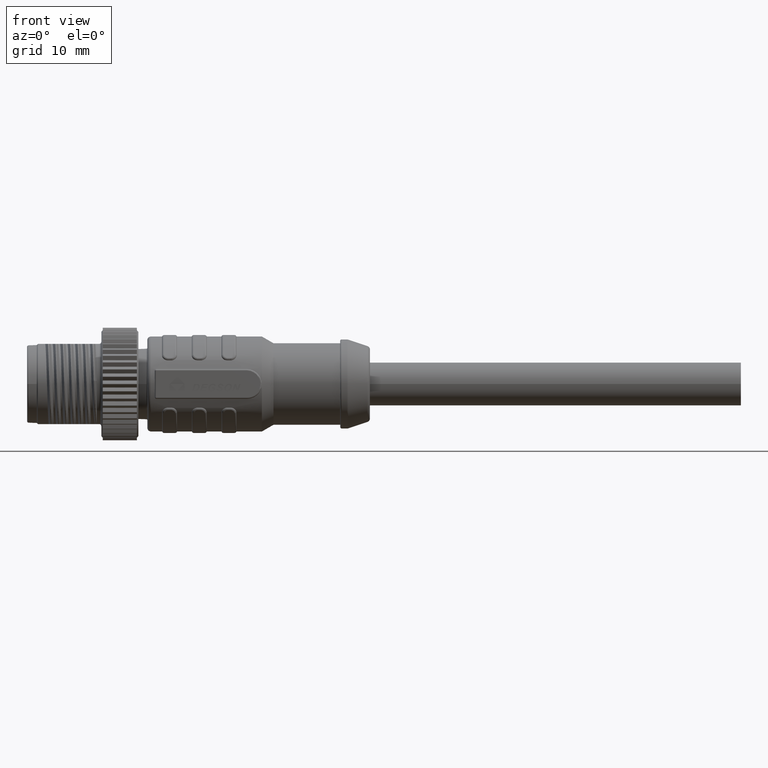
[diagram: clean part render]
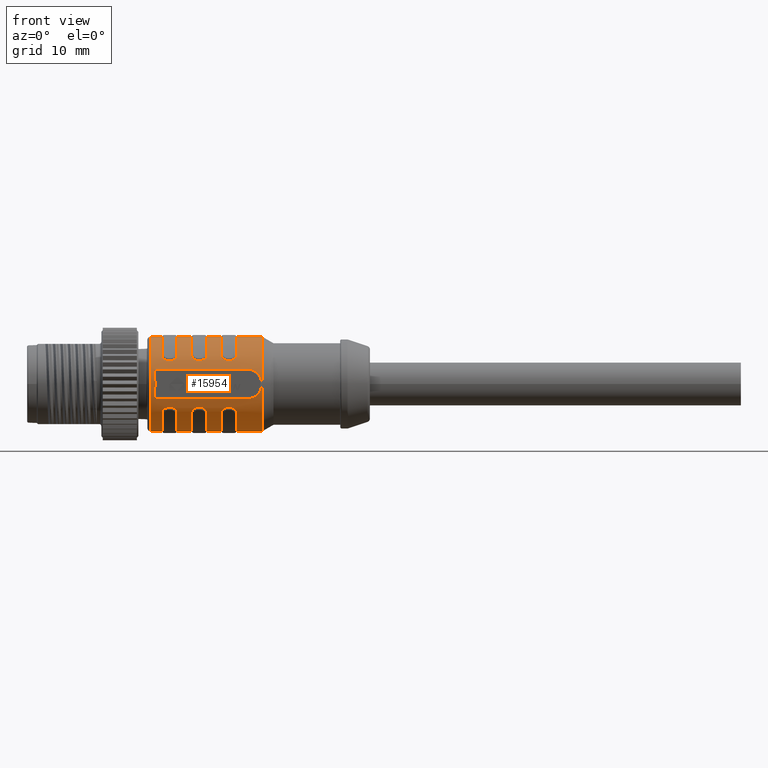
[diagram: same view with one face highlighted and labeled with its STEP entity id]
A machine part, front view. The second image highlights one B-rep face of the part: STEP entity #15954.
In plain terms, the highlighted cylindrical surface (partial cylindrical patch) has radius 6.4 mm, axis along (-1, 0, 0).
Its self-contained STEP definition (entity closure, byte-faithful):
#76=DIRECTION('',(-9.999999999816E-1,-6.059322400566E-6,-2.926676087035E-11));
#77=VECTOR('',#76,3.441154271713E0);
#78=CARTESIAN_POINT('',(2.964115427319E1,0.E0,6.399999999999E0));
#79=LINE('',#78,#77);
#80=DIRECTION('',(-9.999999997881E-1,-2.058735250332E-5,-2.545519353871E-12));
#81=VECTOR('',#80,1.999999997635E0);
#82=CARTESIAN_POINT('',(2.419999999875E1,2.032364179484E-5,6.399999999903E0));
#83=LINE('',#82,#81);
#84=DIRECTION('',(-9.999999997881E-1,-2.058735250331E-5,-2.545519353871E-12));
#85=VECTOR('',#84,1.999999997635E0);
#86=CARTESIAN_POINT('',(2.019999999875E1,2.032364179486E-5,6.399999999903E0));
#87=LINE('',#86,#85);
#88=DIRECTION('',(-9.999999999082E-1,-1.354909454062E-5,6.461142736739E-11));
#89=VECTOR('',#88,1.499999998888E0);
#90=CARTESIAN_POINT('',(1.619999999875E1,2.032364179482E-5,6.399999999903E0));
#91=LINE('',#90,#89);
#92=DIRECTION('',(9.999999999080E-1,-1.356484767814E-5,6.476182559069E-11));
#93=VECTOR('',#92,1.499999998639E0);
#94=CARTESIAN_POINT('',(1.47E1,0.E0,-6.4E0));
#95=LINE('',#94,#93);
#96=DIRECTION('',(9.999999999819E-1,-6.024739272015E-6,-2.892941790041E-11));
#97=VECTOR('',#96,3.441154271972E0);
#98=CARTESIAN_POINT('',(2.620000000128E1,2.073205728420E-5,-6.399999999899E0));
#99=LINE('',#98,#97);
#186=CARTESIAN_POINT('',(2.964115427319E1,0.E0,0.E0));
#187=DIRECTION('',(-1.E0,0.E0,0.E0));
#188=DIRECTION('',(0.E0,0.E0,-1.E0));
#189=AXIS2_PLACEMENT_3D('',#186,#187,#188);
#196=DIRECTION('',(-9.999999997891E-1,2.053966441587E-5,1.852296096468E-12));
#197=VECTOR('',#196,1.999999997643E0);
#198=CARTESIAN_POINT('',(2.419999999850E1,-2.034727149912E-5,
-6.399999999903E0));
#199=LINE('',#198,#197);
#200=DIRECTION('',(-9.999999997891E-1,2.053966441589E-5,1.852296096468E-12));
#201=VECTOR('',#200,1.999999997643E0);
#202=CARTESIAN_POINT('',(2.019999999850E1,-2.034727149914E-5,
-6.399999999903E0));
#203=LINE('',#202,#201);
#204=CARTESIAN_POINT('',(2.764115427319E1,-6.079473661428E0,-2.E0));
#205=CARTESIAN_POINT('',(2.780163845529E1,-6.079473661428E0,-2.E0));
#206=CARTESIAN_POINT('',(2.811464833037E1,-6.091755592816E0,-1.963359181012E0));
#207=CARTESIAN_POINT('',(2.858327753704E1,-6.146883456249E0,-1.787315610165E0));
#208=CARTESIAN_POINT('',(2.898205771589E1,-6.222318587440E0,-1.509587500098E0));
#209=CARTESIAN_POINT('',(2.919872446863E1,-6.275163225418E0,-1.265788930628E0));
#210=CARTESIAN_POINT('',(2.929342543737E1,-6.3E0,-1.126942766960E0));
#212=CARTESIAN_POINT('',(2.929342543737E1,-6.3E0,-1.126942766960E0));
#213=CARTESIAN_POINT('',(2.936165420298E1,-6.317894035236E0,-1.026908918489E0));
#214=CARTESIAN_POINT('',(2.947730784372E1,-6.351788841616E0,
-8.105054143812E-1));
#215=CARTESIAN_POINT('',(2.958763890134E1,-6.389730560142E0,
-4.306898746576E-1));
#216=CARTESIAN_POINT('',(2.961435935395E1,-6.4E0,-1.486254928851E-1));
#217=CARTESIAN_POINT('',(2.961435935395E1,-6.4E0,-5.580320254343E-13));
#219=CARTESIAN_POINT('',(2.961435935395E1,-6.4E0,-5.580320254343E-13));
#220=CARTESIAN_POINT('',(2.961435935395E1,-6.4E0,1.492340871503E-1));
#221=CARTESIAN_POINT('',(2.958742330879E1,-6.389647570708E0,4.320996901310E-1));
#222=CARTESIAN_POINT('',(2.947671250499E1,-6.351599550435E0,8.118824906241E-1));
#223=CARTESIAN_POINT('',(2.936129774273E1,-6.317800548094E0,1.027431543960E0));
#224=CARTESIAN_POINT('',(2.929342543737E1,-6.3E0,1.126942766960E0));
#226=CARTESIAN_POINT('',(2.929342543737E1,-6.3E0,1.126942766960E0));
#227=CARTESIAN_POINT('',(2.919869386668E1,-6.275155199587E0,1.265833797800E0));
#228=CARTESIAN_POINT('',(2.898196104747E1,-6.222296159373E0,1.509681462139E0));
#229=CARTESIAN_POINT('',(2.858312631997E1,-6.146859673757E0,1.787395308827E0));
#230=CARTESIAN_POINT('',(2.811451527086E1,-6.091746896638E0,1.963385022303E0));
#231=CARTESIAN_POINT('',(2.780158403127E1,-6.079473661428E0,2.E0));
#232=CARTESIAN_POINT('',(2.764115427319E1,-6.079473661428E0,2.E0));
#234=DIRECTION('',(-1.E0,0.E0,0.E0));
#235=VECTOR('',#234,1.224115427319E1);
#236=CARTESIAN_POINT('',(2.764115427319E1,-6.079473661428E0,2.E0));
#237=LINE('',#236,#235);
#238=CARTESIAN_POINT('',(1.54E1,-6.079473661428E0,2.E0));
#239=CARTESIAN_POINT('',(1.537307195620E1,-6.079473661428E0,2.E0));
#240=CARTESIAN_POINT('',(1.532334254447E1,-6.082825530815E0,1.989845588511E0));
#241=CARTESIAN_POINT('',(1.525686526739E1,-6.096675990605E0,1.947229248931E0));
#242=CARTESIAN_POINT('',(1.521120426843E1,-6.117753306916E0,1.880171213570E0));
#243=CARTESIAN_POINT('',(1.52E1,-6.133326229622E0,1.828438563792E0));
#244=CARTESIAN_POINT('',(1.52E1,-6.141661013114E0,1.8E0));
#246=CARTESIAN_POINT('',(1.52E1,-6.300000003816E0,1.126942723611E0));
#247=CARTESIAN_POINT('',(1.52E1,-6.319695225804E0,1.016839611516E0));
#248=CARTESIAN_POINT('',(1.520580988603E1,-6.355170004226E0,7.862852561663E-1));
#249=CARTESIAN_POINT('',(1.522156833608E1,-6.391704623956E0,3.978782816545E-1));
#250=CARTESIAN_POINT('',(1.522679491894E1,-6.399999999471E0,1.344978424839E-1));
#251=CARTESIAN_POINT('',(1.522679491924E1,-6.4E0,2.518636298469E-8));
#253=CARTESIAN_POINT('',(1.522679491924E1,-6.4E0,2.518636298469E-8));
#254=CARTESIAN_POINT('',(1.522679491955E1,-6.400000000529E0,
-1.345006295725E-1));
#255=CARTESIAN_POINT('',(1.522156813666E1,-6.391704388588E0,
-3.978849510847E-1));
#256=CARTESIAN_POINT('',(1.520580931416E1,-6.355168225319E0,
-7.862996081843E-1));
#257=CARTESIAN_POINT('',(1.52E1,-6.319694127585E0,-1.016845748926E0));
#258=CARTESIAN_POINT('',(1.52E1,-6.300000003816E0,-1.126942721597E0));
#260=CARTESIAN_POINT('',(1.52E1,-6.141661013114E0,-1.8E0));
#261=CARTESIAN_POINT('',(1.52E1,-6.133465097813E0,-1.827964740818E0));
#262=CARTESIAN_POINT('',(1.521075195406E1,-6.118078221059E0,-1.879118233744E0));
#263=CARTESIAN_POINT('',(1.525657168699E1,-6.096689635688E0,-1.947197619874E0));
#264=CARTESIAN_POINT('',(1.532412199528E1,-6.082709639096E0,-1.990197831782E0));
#265=CARTESIAN_POINT('',(1.537342687209E1,-6.079473661428E0,-2.E0));
#266=CARTESIAN_POINT('',(1.54E1,-6.079473661428E0,-2.E0));
#268=DIRECTION('',(1.E0,0.E0,0.E0));
#269=VECTOR('',#268,1.224115427319E1);
#270=CARTESIAN_POINT('',(1.54E1,-6.079473661428E0,-2.E0));
#271=LINE('',#270,#269);
#272=CARTESIAN_POINT('',(2.620000000128E1,0.E0,0.E0));
#273=DIRECTION('',(1.E0,0.E0,0.E0));
#274=DIRECTION('',(0.E0,-8.014645715649E-1,-5.980422564721E-1));
#275=AXIS2_PLACEMENT_3D('',#272,#273,#274);
#347=CARTESIAN_POINT('',(2.419999999850E1,0.E0,0.E0));
#348=DIRECTION('',(-1.E0,0.E0,0.E0));
#349=DIRECTION('',(0.E0,0.E0,-1.E0));
#350=AXIS2_PLACEMENT_3D('',#347,#348,#349);
#362=CARTESIAN_POINT('',(2.419999999904E1,-5.129373158741E0,-3.827470574744E0));
#363=CARTESIAN_POINT('',(2.419999959966E1,-5.178060385199E0,-3.762222531384E0));
#364=CARTESIAN_POINT('',(2.422482411822E1,-5.267740057093E0,-3.636985294219E0));
#365=CARTESIAN_POINT('',(2.433264968696E1,-5.386024759258E0,-3.458821236284E0));
#366=CARTESIAN_POINT('',(2.450104443900E1,-5.475021439979E0,-3.315193214644E0));
#367=CARTESIAN_POINT('',(2.471539562455E1,-5.530187328455E0,-3.221584294987E0));
#368=CARTESIAN_POINT('',(2.486891410122E1,-5.542562441258E0,-3.200000247345E0));
#369=CARTESIAN_POINT('',(2.495000013524E1,-5.542562584118E0,-3.199999999905E0));
#376=DIRECTION('',(1.E0,-2.049134749898E-10,-1.897025272598E-10));
#377=VECTOR('',#376,4.999998647626E-1);
#378=CARTESIAN_POINT('',(2.495000013524E1,-5.542562584118E0,-3.199999999905E0));
#379=LINE('',#378,#377);
#385=CARTESIAN_POINT('',(2.545E1,-5.542562584220E0,-3.2E0));
#386=CARTESIAN_POINT('',(2.553118455055E1,-5.542562427309E0,-3.200000271777E0));
#387=CARTESIAN_POINT('',(2.568484921258E1,-5.530157657030E0,-3.221636234788E0));
#388=CARTESIAN_POINT('',(2.589927360298E1,-5.474907932866E0,-3.315382947402E0));
#389=CARTESIAN_POINT('',(2.606758167202E1,-5.385847219767E0,-3.459098496607E0));
#390=CARTESIAN_POINT('',(2.617524496813E1,-5.267581782369E0,-3.637211579178E0));
#391=CARTESIAN_POINT('',(2.620000048411E1,-5.177992810335E0,-3.762313092475E0));
#392=CARTESIAN_POINT('',(2.620000000071E1,-5.129372861972E0,-3.827470973315E0));
#418=CARTESIAN_POINT('',(2.220000000128E1,0.E0,0.E0));
#419=DIRECTION('',(1.E0,0.E0,0.E0));
#420=DIRECTION('',(0.E0,-8.014645715649E-1,-5.980422564721E-1));
#421=AXIS2_PLACEMENT_3D('',#418,#419,#420);
#493=CARTESIAN_POINT('',(2.019999999850E1,0.E0,0.E0));
#494=DIRECTION('',(-1.E0,0.E0,0.E0));
#495=DIRECTION('',(0.E0,0.E0,-1.E0));
#496=AXIS2_PLACEMENT_3D('',#493,#494,#495);
#508=CARTESIAN_POINT('',(2.019999999904E1,-5.129373158741E0,-3.827470574744E0));
#509=CARTESIAN_POINT('',(2.019999959966E1,-5.178060385200E0,-3.762222531383E0));
#510=CARTESIAN_POINT('',(2.022482411822E1,-5.267740057096E0,-3.636985294216E0));
#511=CARTESIAN_POINT('',(2.033264968696E1,-5.386024759261E0,-3.458821236279E0));
#512=CARTESIAN_POINT('',(2.050104443901E1,-5.475021439981E0,-3.315193214641E0));
#513=CARTESIAN_POINT('',(2.071539562455E1,-5.530187328456E0,-3.221584294986E0));
#514=CARTESIAN_POINT('',(2.086891410122E1,-5.542562441259E0,-3.200000247344E0));
#515=CARTESIAN_POINT('',(2.095000013524E1,-5.542562584118E0,-3.199999999905E0));
#522=DIRECTION('',(1.E0,-2.049152513474E-10,-1.897043036174E-10));
#523=VECTOR('',#522,4.999998647619E-1);
#524=CARTESIAN_POINT('',(2.095000013524E1,-5.542562584118E0,-3.199999999905E0));
#525=LINE('',#524,#523);
#531=CARTESIAN_POINT('',(2.145E1,-5.542562584220E0,-3.2E0));
#532=CARTESIAN_POINT('',(2.153118455054E1,-5.542562427309E0,-3.200000271777E0));
#533=CARTESIAN_POINT('',(2.168484921256E1,-5.530157657032E0,-3.221636234784E0));
#534=CARTESIAN_POINT('',(2.189927360297E1,-5.474907932872E0,-3.315382947391E0));
#535=CARTESIAN_POINT('',(2.206758167202E1,-5.385847219771E0,-3.459098496600E0));
#536=CARTESIAN_POINT('',(2.217524496813E1,-5.267581782370E0,-3.637211579177E0));
#537=CARTESIAN_POINT('',(2.220000048411E1,-5.177992810335E0,-3.762313092475E0));
#538=CARTESIAN_POINT('',(2.220000000071E1,-5.129372861972E0,-3.827470973315E0));
#564=CARTESIAN_POINT('',(1.820000000128E1,0.E0,0.E0));
#565=DIRECTION('',(1.E0,0.E0,0.E0));
#566=DIRECTION('',(0.E0,-8.014645715649E-1,-5.980422564721E-1));
#567=AXIS2_PLACEMENT_3D('',#564,#565,#566);
#639=CARTESIAN_POINT('',(1.619999999850E1,0.E0,0.E0));
#640=DIRECTION('',(-1.E0,0.E0,0.E0));
#641=DIRECTION('',(0.E0,0.E0,-1.E0));
#642=AXIS2_PLACEMENT_3D('',#639,#640,#641);
#654=CARTESIAN_POINT('',(1.619999999904E1,-5.129373158741E0,-3.827470574744E0));
#655=CARTESIAN_POINT('',(1.619999959966E1,-5.178060385199E0,-3.762222531383E0));
#656=CARTESIAN_POINT('',(1.622482411822E1,-5.267740057094E0,-3.636985294218E0));
#657=CARTESIAN_POINT('',(1.633264968696E1,-5.386024759259E0,-3.458821236283E0));
#658=CARTESIAN_POINT('',(1.650104443900E1,-5.475021439978E0,-3.315193214645E0));
#659=CARTESIAN_POINT('',(1.671539562455E1,-5.530187328455E0,-3.221584294987E0));
#660=CARTESIAN_POINT('',(1.686891410122E1,-5.542562441259E0,-3.200000247344E0));
#661=CARTESIAN_POINT('',(1.695000013524E1,-5.542562584118E0,-3.199999999905E0));
#668=DIRECTION('',(1.E0,-2.049170277047E-10,-1.897051917961E-10));
#669=VECTOR('',#668,4.999998647619E-1);
#670=CARTESIAN_POINT('',(1.695000013524E1,-5.542562584118E0,-3.199999999905E0));
#671=LINE('',#670,#669);
#677=CARTESIAN_POINT('',(1.745E1,-5.542562584220E0,-3.2E0));
#678=CARTESIAN_POINT('',(1.753118455055E1,-5.542562427309E0,-3.200000271777E0));
#679=CARTESIAN_POINT('',(1.768484921257E1,-5.530157657031E0,-3.221636234786E0));
#680=CARTESIAN_POINT('',(1.789927360297E1,-5.474907932870E0,-3.315382947394E0));
#681=CARTESIAN_POINT('',(1.806758167201E1,-5.385847219774E0,-3.459098496595E0));
#682=CARTESIAN_POINT('',(1.817524496813E1,-5.267581782376E0,-3.637211579168E0));
#683=CARTESIAN_POINT('',(1.820000048411E1,-5.177992810338E0,-3.762313092471E0));
#684=CARTESIAN_POINT('',(1.820000000071E1,-5.129372861972E0,-3.827470973315E0));
#710=CARTESIAN_POINT('',(1.47E1,0.E0,0.E0));
#711=DIRECTION('',(1.E0,0.E0,0.E0));
#712=DIRECTION('',(0.E0,0.E0,1.E0));
#713=AXIS2_PLACEMENT_3D('',#710,#711,#712);
#8158=CARTESIAN_POINT('',(1.619999999875E1,0.E0,0.E0));
#8159=DIRECTION('',(-1.E0,0.E0,0.E0));
#8160=DIRECTION('',(0.E0,-8.014645715768E-1,5.980422564563E-1));
#8161=AXIS2_PLACEMENT_3D('',#8158,#8159,#8160);
#8233=CARTESIAN_POINT('',(1.820000000154E1,0.E0,0.E0));
#8234=DIRECTION('',(1.E0,0.E0,0.E0));
#8235=DIRECTION('',(0.E0,0.E0,1.E0));
#8236=AXIS2_PLACEMENT_3D('',#8233,#8234,#8235);
#8248=CARTESIAN_POINT('',(1.820000000099E1,-5.129373158715E0,3.827470574778E0));
#8249=CARTESIAN_POINT('',(1.820000040036E1,-5.178060385154E0,3.762222531445E0));
#8250=CARTESIAN_POINT('',(1.817517588187E1,-5.267740056952E0,3.636985294423E0));
#8251=CARTESIAN_POINT('',(1.806735031313E1,-5.386024759193E0,3.458821236386E0));
#8252=CARTESIAN_POINT('',(1.789895556127E1,-5.475021439867E0,3.315193214829E0));
#8253=CARTESIAN_POINT('',(1.768460437569E1,-5.530187328429E0,3.221584295034E0));
#8254=CARTESIAN_POINT('',(1.753108589888E1,-5.542562441259E0,3.200000247344E0));
#8255=CARTESIAN_POINT('',(1.744999986476E1,-5.542562584118E0,3.199999999905E0));
#8262=DIRECTION('',(-1.E0,-2.048868296299E-10,1.897362780488E-10));
#8263=VECTOR('',#8262,4.999998647628E-1);
#8264=CARTESIAN_POINT('',(1.744999986476E1,-5.542562584118E0,3.199999999905E0));
#8265=LINE('',#8264,#8263);
#8271=CARTESIAN_POINT('',(1.695E1,-5.542562584220E0,3.2E0));
#8272=CARTESIAN_POINT('',(1.686881544965E1,-5.542562427309E0,3.200000271778E0));
#8273=CARTESIAN_POINT('',(1.671515078789E1,-5.530157657095E0,3.221636234673E0));
#8274=CARTESIAN_POINT('',(1.650072639739E1,-5.474907933020E0,3.315382947148E0));
#8275=CARTESIAN_POINT('',(1.633241832811E1,-5.385847219868E0,3.459098496447E0));
#8276=CARTESIAN_POINT('',(1.622475503194E1,-5.267581782560E0,3.637211578904E0));
#8277=CARTESIAN_POINT('',(1.619999951590E1,-5.177992810401E0,3.762313092384E0));
#8278=CARTESIAN_POINT('',(1.619999999931E1,-5.129372861998E0,3.827470973279E0));
#8304=CARTESIAN_POINT('',(2.019999999875E1,0.E0,0.E0));
#8305=DIRECTION('',(-1.E0,0.E0,0.E0));
#8306=DIRECTION('',(0.E0,-8.014645715768E-1,5.980422564563E-1));
#8307=AXIS2_PLACEMENT_3D('',#8304,#8305,#8306);
#8379=CARTESIAN_POINT('',(2.220000000154E1,0.E0,0.E0));
#8380=DIRECTION('',(1.E0,0.E0,0.E0));
#8381=DIRECTION('',(0.E0,0.E0,1.E0));
#8382=AXIS2_PLACEMENT_3D('',#8379,#8380,#8381);
#8394=CARTESIAN_POINT('',(2.220000000099E1,-5.129373158715E0,3.827470574778E0));
#8395=CARTESIAN_POINT('',(2.220000040036E1,-5.178060385152E0,3.762222531449E0));
#8396=CARTESIAN_POINT('',(2.217517588187E1,-5.267740056946E0,3.636985294431E0));
#8397=CARTESIAN_POINT('',(2.206735031313E1,-5.386024759189E0,3.458821236392E0));
#8398=CARTESIAN_POINT('',(2.189895556128E1,-5.475021439865E0,3.315193214831E0));
#8399=CARTESIAN_POINT('',(2.168460437569E1,-5.530187328429E0,3.221584295034E0));
#8400=CARTESIAN_POINT('',(2.153108589888E1,-5.542562441259E0,3.200000247344E0));
#8401=CARTESIAN_POINT('',(2.144999986476E1,-5.542562584118E0,3.199999999905E0));
#8408=DIRECTION('',(-1.E0,-2.048868296299E-10,1.897353898702E-10));
#8409=VECTOR('',#8408,4.999998647628E-1);
#8410=CARTESIAN_POINT('',(2.144999986476E1,-5.542562584118E0,3.199999999905E0));
#8411=LINE('',#8410,#8409);
#8417=CARTESIAN_POINT('',(2.095E1,-5.542562584220E0,3.2E0));
#8418=CARTESIAN_POINT('',(2.086881544965E1,-5.542562427309E0,3.200000271778E0));
#8419=CARTESIAN_POINT('',(2.071515078789E1,-5.530157657095E0,3.221636234674E0));
#8420=CARTESIAN_POINT('',(2.050072639739E1,-5.474907933020E0,3.315382947148E0));
#8421=CARTESIAN_POINT('',(2.033241832811E1,-5.385847219869E0,3.459098496446E0));
#8422=CARTESIAN_POINT('',(2.022475503194E1,-5.267581782561E0,3.637211578902E0));
#8423=CARTESIAN_POINT('',(2.019999951590E1,-5.177992810401E0,3.762313092384E0));
#8424=CARTESIAN_POINT('',(2.019999999931E1,-5.129372861998E0,3.827470973279E0));
#8450=CARTESIAN_POINT('',(2.419999999875E1,0.E0,0.E0));
#8451=DIRECTION('',(-1.E0,0.E0,0.E0));
#8452=DIRECTION('',(0.E0,-8.014645715768E-1,5.980422564563E-1));
#8453=AXIS2_PLACEMENT_3D('',#8450,#8451,#8452);
#8525=CARTESIAN_POINT('',(2.620000000154E1,0.E0,0.E0));
#8526=DIRECTION('',(1.E0,0.E0,0.E0));
#8527=DIRECTION('',(0.E0,0.E0,1.E0));
#8528=AXIS2_PLACEMENT_3D('',#8525,#8526,#8527);
#8540=CARTESIAN_POINT('',(2.620000000099E1,-5.129373158715E0,3.827470574778E0));
#8541=CARTESIAN_POINT('',(2.620000040036E1,-5.178060385154E0,3.762222531445E0));
#8542=CARTESIAN_POINT('',(2.617517588187E1,-5.267740056951E0,3.636985294423E0));
#8543=CARTESIAN_POINT('',(2.606735031313E1,-5.386024759191E0,3.458821236388E0));
#8544=CARTESIAN_POINT('',(2.589895556128E1,-5.475021439865E0,3.315193214831E0));
#8545=CARTESIAN_POINT('',(2.568460437569E1,-5.530187328428E0,3.221584295035E0));
#8546=CARTESIAN_POINT('',(2.553108589889E1,-5.542562441259E0,3.200000247344E0));
#8547=CARTESIAN_POINT('',(2.544999986476E1,-5.542562584118E0,3.199999999905E0));
#8554=DIRECTION('',(-1.E0,-2.048868296299E-10,1.897362780488E-10));
#8555=VECTOR('',#8554,4.999998647628E-1);
#8556=CARTESIAN_POINT('',(2.544999986476E1,-5.542562584118E0,3.199999999905E0));
#8557=LINE('',#8556,#8555);
#8563=CARTESIAN_POINT('',(2.495E1,-5.542562584220E0,3.2E0));
#8564=CARTESIAN_POINT('',(2.486881544965E1,-5.542562427309E0,3.200000271778E0));
#8565=CARTESIAN_POINT('',(2.471515078789E1,-5.530157657095E0,3.221636234674E0));
#8566=CARTESIAN_POINT('',(2.450072639739E1,-5.474907933020E0,3.315382947148E0));
#8567=CARTESIAN_POINT('',(2.433241832811E1,-5.385847219869E0,3.459098496447E0));
#8568=CARTESIAN_POINT('',(2.422475503194E1,-5.267581782561E0,3.637211578903E0));
#8569=CARTESIAN_POINT('',(2.419999951590E1,-5.177992810401E0,3.762313092384E0));
#8570=CARTESIAN_POINT('',(2.419999999931E1,-5.129372861998E0,3.827470973279E0));
#9135=CARTESIAN_POINT('',(1.52E1,0.E0,0.E0));
#9136=DIRECTION('',(-1.E0,0.E0,0.E0));
#9137=DIRECTION('',(0.E0,-9.596345332990E-1,-2.8125E-1));
#9138=AXIS2_PLACEMENT_3D('',#9135,#9136,#9137);
#9152=CARTESIAN_POINT('',(1.52E1,0.E0,0.E0));
#9153=DIRECTION('',(-1.E0,0.E0,0.E0));
#9154=DIRECTION('',(0.E0,-9.84375E-1,1.760848073373E-1));
#9155=AXIS2_PLACEMENT_3D('',#9152,#9153,#9154);
#12973=CARTESIAN_POINT('',(2.929342543737E1,-6.3E0,1.126942766961E0));
#12974=VERTEX_POINT('',#12973);
#12975=VERTEX_POINT('',#219);
#12976=VERTEX_POINT('',#212);
#12981=CARTESIAN_POINT('',(1.54E1,-6.079473661428E0,2.E0));
#12982=VERTEX_POINT('',#12981);
#12983=CARTESIAN_POINT('',(2.764115427319E1,-6.079473661428E0,2.E0));
#12984=VERTEX_POINT('',#12983);
#12987=CARTESIAN_POINT('',(1.52E1,-6.141661013114E0,1.8E0));
#12988=VERTEX_POINT('',#12987);
#12989=VERTEX_POINT('',#253);
#12990=VERTEX_POINT('',#258);
#12991=VERTEX_POINT('',#246);
#12994=CARTESIAN_POINT('',(2.964115427319E1,0.E0,-6.399999999997E0));
#12995=CARTESIAN_POINT('',(2.964115427319E1,0.E0,6.399999999997E0));
#12996=VERTEX_POINT('',#12994);
#12997=VERTEX_POINT('',#12995);
#12998=CARTESIAN_POINT('',(2.620000000128E1,2.073205728420E-5,
-6.399999999899E0));
#12999=VERTEX_POINT('',#12998);
#13000=CARTESIAN_POINT('',(2.620000000128E1,-5.129373258015E0,
-3.827470441421E0));
#13001=VERTEX_POINT('',#13000);
#13002=VERTEX_POINT('',#385);
#13003=CARTESIAN_POINT('',(2.495000013524E1,-5.542562584118E0,
-3.199999999905E0));
#13004=VERTEX_POINT('',#13003);
#13005=VERTEX_POINT('',#362);
#13006=CARTESIAN_POINT('',(2.419999999850E1,0.E0,-6.4E0));
#13007=VERTEX_POINT('',#13006);
#13008=CARTESIAN_POINT('',(2.220000000128E1,2.073205728422E-5,
-6.399999999899E0));
#13009=VERTEX_POINT('',#13008);
#13010=CARTESIAN_POINT('',(2.220000000128E1,-5.129373258015E0,
-3.827470441421E0));
#13011=VERTEX_POINT('',#13010);
#13012=VERTEX_POINT('',#531);
#13013=CARTESIAN_POINT('',(2.095000013524E1,-5.542562584118E0,
-3.199999999905E0));
#13014=VERTEX_POINT('',#13013);
#13015=VERTEX_POINT('',#508);
#13016=CARTESIAN_POINT('',(2.019999999850E1,0.E0,-6.4E0));
#13017=VERTEX_POINT('',#13016);
#13018=CARTESIAN_POINT('',(1.820000000128E1,2.073205728424E-5,
-6.399999999899E0));
#13019=VERTEX_POINT('',#13018);
#13020=CARTESIAN_POINT('',(1.820000000128E1,-5.129373258015E0,
-3.827470441421E0));
#13021=VERTEX_POINT('',#13020);
#13022=VERTEX_POINT('',#677);
#13023=CARTESIAN_POINT('',(1.695000013524E1,-5.542562584118E0,
-3.199999999905E0));
#13024=VERTEX_POINT('',#13023);
#13025=VERTEX_POINT('',#654);
#13026=CARTESIAN_POINT('',(1.619999999850E1,0.E0,-6.4E0));
#13027=VERTEX_POINT('',#13026);
#13028=CARTESIAN_POINT('',(1.47E1,0.E0,-6.4E0));
#13029=VERTEX_POINT('',#13028);
#13030=CARTESIAN_POINT('',(1.47E1,0.E0,6.4E0));
#13031=VERTEX_POINT('',#13030);
#13032=CARTESIAN_POINT('',(1.619999999875E1,2.032364179482E-5,
6.399999999903E0));
#13033=VERTEX_POINT('',#13032);
#13034=CARTESIAN_POINT('',(1.619999999875E1,-5.129373258091E0,
3.827470441320E0));
#13035=VERTEX_POINT('',#13034);
#13036=VERTEX_POINT('',#8271);
#13037=CARTESIAN_POINT('',(1.744999986476E1,-5.542562584118E0,
3.199999999905E0));
#13038=VERTEX_POINT('',#13037);
#13039=VERTEX_POINT('',#8248);
#13040=CARTESIAN_POINT('',(1.820000000154E1,0.E0,6.4E0));
#13041=VERTEX_POINT('',#13040);
#13042=CARTESIAN_POINT('',(2.019999999875E1,2.032364179486E-5,
6.399999999903E0));
#13043=VERTEX_POINT('',#13042);
#13044=CARTESIAN_POINT('',(2.019999999875E1,-5.129373258091E0,
3.827470441320E0));
#13045=VERTEX_POINT('',#13044);
#13046=VERTEX_POINT('',#8417);
#13047=CARTESIAN_POINT('',(2.144999986476E1,-5.542562584118E0,
3.199999999905E0));
#13048=VERTEX_POINT('',#13047);
#13049=VERTEX_POINT('',#8394);
#13050=CARTESIAN_POINT('',(2.220000000154E1,0.E0,6.4E0));
#13051=VERTEX_POINT('',#13050);
#13052=CARTESIAN_POINT('',(2.419999999875E1,2.032364179484E-5,
6.399999999903E0));
#13053=VERTEX_POINT('',#13052);
#13054=CARTESIAN_POINT('',(2.419999999875E1,-5.129373258091E0,
3.827470441320E0));
#13055=VERTEX_POINT('',#13054);
#13056=VERTEX_POINT('',#8563);
#13057=CARTESIAN_POINT('',(2.544999986476E1,-5.542562584118E0,
3.199999999905E0));
#13058=VERTEX_POINT('',#13057);
#13059=VERTEX_POINT('',#8540);
#13060=CARTESIAN_POINT('',(2.620000000154E1,0.E0,6.4E0));
#13061=VERTEX_POINT('',#13060);
#13062=VERTEX_POINT('',#204);
#13063=CARTESIAN_POINT('',(1.52E1,-6.141661013114E0,-1.8E0));
#13064=VERTEX_POINT('',#13063);
#13065=VERTEX_POINT('',#266);
#15850=CARTESIAN_POINT('',(4.57E1,0.E0,0.E0));
#15851=DIRECTION('',(-1.E0,0.E0,0.E0));
#15852=DIRECTION('',(0.E0,0.E0,1.E0));
#15853=AXIS2_PLACEMENT_3D('',#15850,#15851,#15852);
#15854=CYLINDRICAL_SURFACE('',#15853,6.4E0);
#15855=ORIENTED_EDGE('',*,*,#15841,.F.);
#15856=ORIENTED_EDGE('',*,*,#15792,.F.);
#15858=ORIENTED_EDGE('',*,*,#15857,.F.);
#15860=ORIENTED_EDGE('',*,*,#15859,.F.);
#15862=ORIENTED_EDGE('',*,*,#15861,.F.);
#15864=ORIENTED_EDGE('',*,*,#15863,.F.);
#15866=ORIENTED_EDGE('',*,*,#15865,.F.);
#15867=ORIENTED_EDGE('',*,*,#15780,.T.);
#15869=ORIENTED_EDGE('',*,*,#15868,.F.);
#15871=ORIENTED_EDGE('',*,*,#15870,.F.);
#15873=ORIENTED_EDGE('',*,*,#15872,.F.);
#15875=ORIENTED_EDGE('',*,*,#15874,.F.);
#15877=ORIENTED_EDGE('',*,*,#15876,.F.);
#15878=ORIENTED_EDGE('',*,*,#15768,.T.);
#15880=ORIENTED_EDGE('',*,*,#15879,.F.);
#15882=ORIENTED_EDGE('',*,*,#15881,.F.);
#15884=ORIENTED_EDGE('',*,*,#15883,.F.);
#15886=ORIENTED_EDGE('',*,*,#15885,.F.);
#15888=ORIENTED_EDGE('',*,*,#15887,.F.);
#15889=ORIENTED_EDGE('',*,*,#15756,.F.);
#15891=ORIENTED_EDGE('',*,*,#15890,.F.);
#15892=ORIENTED_EDGE('',*,*,#15752,.F.);
#15894=ORIENTED_EDGE('',*,*,#15893,.F.);
#15896=ORIENTED_EDGE('',*,*,#15895,.F.);
#15898=ORIENTED_EDGE('',*,*,#15897,.F.);
#15900=ORIENTED_EDGE('',*,*,#15899,.F.);
#15902=ORIENTED_EDGE('',*,*,#15901,.F.);
#15903=ORIENTED_EDGE('',*,*,#15740,.F.);
#15905=ORIENTED_EDGE('',*,*,#15904,.F.);
#15907=ORIENTED_EDGE('',*,*,#15906,.F.);
#15909=ORIENTED_EDGE('',*,*,#15908,.F.);
#15911=ORIENTED_EDGE('',*,*,#15910,.F.);
#15913=ORIENTED_EDGE('',*,*,#15912,.F.);
#15914=ORIENTED_EDGE('',*,*,#15728,.F.);
#15916=ORIENTED_EDGE('',*,*,#15915,.F.);
#15918=ORIENTED_EDGE('',*,*,#15917,.F.);
#15920=ORIENTED_EDGE('',*,*,#15919,.F.);
#15922=ORIENTED_EDGE('',*,*,#15921,.F.);
#15924=ORIENTED_EDGE('',*,*,#15923,.F.);
#15925=ORIENTED_EDGE('',*,*,#15716,.F.);
#15926=EDGE_LOOP('',(#15855,#15856,#15858,#15860,#15862,#15864,#15866,#15867,
#15869,#15871,#15873,#15875,#15877,#15878,#15880,#15882,#15884,#15886,#15888,
#15889,#15891,#15892,#15894,#15896,#15898,#15900,#15902,#15903,#15905,#15907,
#15909,#15911,#15913,#15914,#15916,#15918,#15920,#15922,#15924,#15925));
#15927=FACE_OUTER_BOUND('',#15926,.F.);
#15929=ORIENTED_EDGE('',*,*,#15928,.T.);
#15931=ORIENTED_EDGE('',*,*,#15930,.T.);
#15933=ORIENTED_EDGE('',*,*,#15932,.T.);
#15935=ORIENTED_EDGE('',*,*,#15934,.T.);
#15937=ORIENTED_EDGE('',*,*,#15936,.T.);
#15939=ORIENTED_EDGE('',*,*,#15938,.T.);
#15941=ORIENTED_EDGE('',*,*,#15940,.F.);
#15943=ORIENTED_EDGE('',*,*,#15942,.T.);
#15945=ORIENTED_EDGE('',*,*,#15944,.T.);
#15947=ORIENTED_EDGE('',*,*,#15946,.F.);
#15949=ORIENTED_EDGE('',*,*,#15948,.T.);
#15951=ORIENTED_EDGE('',*,*,#15950,.T.);
#15952=EDGE_LOOP('',(#15929,#15931,#15933,#15935,#15937,#15939,#15941,#15943,
#15945,#15947,#15949,#15951));
#15953=FACE_BOUND('',#15952,.F.);
#15954=ADVANCED_FACE('',(#15927,#15953),#15854,.T.);
#190=CIRCLE('',#189,6.399999999997E0);
#211=B_SPLINE_CURVE_WITH_KNOTS('',3,(#204,#205,#206,#207,#208,#209,#210),
.UNSPECIFIED.,.F.,.F.,(4,1,1,1,4),(0.E0,2.5E-1,5.E-1,7.5E-1,1.E0),
.UNSPECIFIED.);
#218=B_SPLINE_CURVE_WITH_KNOTS('',3,(#212,#213,#214,#215,#216,#217),
.UNSPECIFIED.,.F.,.F.,(4,1,1,4),(0.E0,3.333333333333E-1,6.666666666667E-1,1.E0),
.UNSPECIFIED.);
#225=B_SPLINE_CURVE_WITH_KNOTS('',3,(#219,#220,#221,#222,#223,#224),
.UNSPECIFIED.,.F.,.F.,(4,1,1,4),(0.E0,3.333333333333E-1,6.666666666667E-1,1.E0),
.UNSPECIFIED.);
#233=B_SPLINE_CURVE_WITH_KNOTS('',3,(#226,#227,#228,#229,#230,#231,#232),
.UNSPECIFIED.,.F.,.F.,(4,1,1,1,4),(0.E0,2.5E-1,5.E-1,7.5E-1,1.E0),
.UNSPECIFIED.);
#245=B_SPLINE_CURVE_WITH_KNOTS('',3,(#238,#239,#240,#241,#242,#243,#244),
.UNSPECIFIED.,.F.,.F.,(4,1,1,1,4),(0.E0,2.5E-1,5.E-1,7.5E-1,1.E0),
.UNSPECIFIED.);
#252=B_SPLINE_CURVE_WITH_KNOTS('',3,(#246,#247,#248,#249,#250,#251),
.UNSPECIFIED.,.F.,.F.,(4,1,1,4),(0.E0,3.333333333333E-1,6.666666666667E-1,1.E0),
.UNSPECIFIED.);
#259=B_SPLINE_CURVE_WITH_KNOTS('',3,(#253,#254,#255,#256,#257,#258),
.UNSPECIFIED.,.F.,.F.,(4,1,1,4),(0.E0,3.333333333333E-1,6.666666666667E-1,1.E0),
.UNSPECIFIED.);
#267=B_SPLINE_CURVE_WITH_KNOTS('',3,(#260,#261,#262,#263,#264,#265,#266),
.UNSPECIFIED.,.F.,.F.,(4,1,1,1,4),(0.E0,2.5E-1,5.E-1,7.5E-1,1.E0),
.UNSPECIFIED.);
#276=CIRCLE('',#275,6.4E0);
#351=CIRCLE('',#350,6.4E0);
#370=B_SPLINE_CURVE_WITH_KNOTS('',3,(#362,#363,#364,#365,#366,#367,#368,#369),
.UNSPECIFIED.,.F.,.F.,(4,1,1,1,1,4),(0.E0,2.E-1,4.E-1,6.E-1,8.E-1,1.E0),
.UNSPECIFIED.);
#393=B_SPLINE_CURVE_WITH_KNOTS('',3,(#385,#386,#387,#388,#389,#390,#391,#392),
.UNSPECIFIED.,.F.,.F.,(4,1,1,1,1,4),(0.E0,2.E-1,4.E-1,6.E-1,8.E-1,1.E0),
.UNSPECIFIED.);
#422=CIRCLE('',#421,6.4E0);
#497=CIRCLE('',#496,6.4E0);
#516=B_SPLINE_CURVE_WITH_KNOTS('',3,(#508,#509,#510,#511,#512,#513,#514,#515),
.UNSPECIFIED.,.F.,.F.,(4,1,1,1,1,4),(0.E0,2.E-1,4.E-1,6.E-1,8.E-1,1.E0),
.UNSPECIFIED.);
#539=B_SPLINE_CURVE_WITH_KNOTS('',3,(#531,#532,#533,#534,#535,#536,#537,#538),
.UNSPECIFIED.,.F.,.F.,(4,1,1,1,1,4),(0.E0,2.E-1,4.E-1,6.E-1,8.E-1,1.E0),
.UNSPECIFIED.);
#568=CIRCLE('',#567,6.4E0);
#643=CIRCLE('',#642,6.4E0);
#662=B_SPLINE_CURVE_WITH_KNOTS('',3,(#654,#655,#656,#657,#658,#659,#660,#661),
.UNSPECIFIED.,.F.,.F.,(4,1,1,1,1,4),(0.E0,2.E-1,4.E-1,6.E-1,8.E-1,1.E0),
.UNSPECIFIED.);
#685=B_SPLINE_CURVE_WITH_KNOTS('',3,(#677,#678,#679,#680,#681,#682,#683,#684),
.UNSPECIFIED.,.F.,.F.,(4,1,1,1,1,4),(0.E0,2.E-1,4.E-1,6.E-1,8.E-1,1.E0),
.UNSPECIFIED.);
#714=CIRCLE('',#713,6.4E0);
#8162=CIRCLE('',#8161,6.4E0);
#8237=CIRCLE('',#8236,6.4E0);
#8256=B_SPLINE_CURVE_WITH_KNOTS('',3,(#8248,#8249,#8250,#8251,#8252,#8253,#8254,
#8255),.UNSPECIFIED.,.F.,.F.,(4,1,1,1,1,4),(0.E0,2.E-1,4.E-1,6.E-1,8.E-1,1.E0),
.UNSPECIFIED.);
#8279=B_SPLINE_CURVE_WITH_KNOTS('',3,(#8271,#8272,#8273,#8274,#8275,#8276,#8277,
#8278),.UNSPECIFIED.,.F.,.F.,(4,1,1,1,1,4),(0.E0,2.E-1,4.E-1,6.E-1,8.E-1,1.E0),
.UNSPECIFIED.);
#8308=CIRCLE('',#8307,6.4E0);
#8383=CIRCLE('',#8382,6.4E0);
#8402=B_SPLINE_CURVE_WITH_KNOTS('',3,(#8394,#8395,#8396,#8397,#8398,#8399,#8400,
#8401),.UNSPECIFIED.,.F.,.F.,(4,1,1,1,1,4),(0.E0,2.E-1,4.E-1,6.E-1,8.E-1,1.E0),
.UNSPECIFIED.);
#8425=B_SPLINE_CURVE_WITH_KNOTS('',3,(#8417,#8418,#8419,#8420,#8421,#8422,#8423,
#8424),.UNSPECIFIED.,.F.,.F.,(4,1,1,1,1,4),(0.E0,2.E-1,4.E-1,6.E-1,8.E-1,1.E0),
.UNSPECIFIED.);
#8454=CIRCLE('',#8453,6.4E0);
#8529=CIRCLE('',#8528,6.4E0);
#8548=B_SPLINE_CURVE_WITH_KNOTS('',3,(#8540,#8541,#8542,#8543,#8544,#8545,#8546,
#8547),.UNSPECIFIED.,.F.,.F.,(4,1,1,1,1,4),(0.E0,2.E-1,4.E-1,6.E-1,8.E-1,1.E0),
.UNSPECIFIED.);
#8571=B_SPLINE_CURVE_WITH_KNOTS('',3,(#8563,#8564,#8565,#8566,#8567,#8568,#8569,
#8570),.UNSPECIFIED.,.F.,.F.,(4,1,1,1,1,4),(0.E0,2.E-1,4.E-1,6.E-1,8.E-1,1.E0),
.UNSPECIFIED.);
#9139=CIRCLE('',#9138,6.4E0);
#9156=CIRCLE('',#9155,6.4E0);
#15716=EDGE_CURVE('',#12997,#13061,#79,.T.);
#15728=EDGE_CURVE('',#13053,#13051,#83,.T.);
#15740=EDGE_CURVE('',#13043,#13041,#87,.T.);
#15752=EDGE_CURVE('',#13033,#13031,#91,.T.);
#15756=EDGE_CURVE('',#13029,#13027,#95,.T.);
#15768=EDGE_CURVE('',#13017,#13019,#203,.T.);
#15780=EDGE_CURVE('',#13007,#13009,#199,.T.);
#15792=EDGE_CURVE('',#12999,#12996,#99,.T.);
#15841=EDGE_CURVE('',#12996,#12997,#190,.T.);
#15857=EDGE_CURVE('',#13001,#12999,#276,.T.);
#15859=EDGE_CURVE('',#13002,#13001,#393,.T.);
#15861=EDGE_CURVE('',#13004,#13002,#379,.T.);
#15863=EDGE_CURVE('',#13005,#13004,#370,.T.);
#15865=EDGE_CURVE('',#13007,#13005,#351,.T.);
#15868=EDGE_CURVE('',#13011,#13009,#422,.T.);
#15870=EDGE_CURVE('',#13012,#13011,#539,.T.);
#15872=EDGE_CURVE('',#13014,#13012,#525,.T.);
#15874=EDGE_CURVE('',#13015,#13014,#516,.T.);
#15876=EDGE_CURVE('',#13017,#13015,#497,.T.);
#15879=EDGE_CURVE('',#13021,#13019,#568,.T.);
#15881=EDGE_CURVE('',#13022,#13021,#685,.T.);
#15883=EDGE_CURVE('',#13024,#13022,#671,.T.);
#15885=EDGE_CURVE('',#13025,#13024,#662,.T.);
#15887=EDGE_CURVE('',#13027,#13025,#643,.T.);
#15890=EDGE_CURVE('',#13031,#13029,#714,.T.);
#15893=EDGE_CURVE('',#13035,#13033,#8162,.T.);
#15895=EDGE_CURVE('',#13036,#13035,#8279,.T.);
#15897=EDGE_CURVE('',#13038,#13036,#8265,.T.);
#15899=EDGE_CURVE('',#13039,#13038,#8256,.T.);
#15901=EDGE_CURVE('',#13041,#13039,#8237,.T.);
#15904=EDGE_CURVE('',#13045,#13043,#8308,.T.);
#15906=EDGE_CURVE('',#13046,#13045,#8425,.T.);
#15908=EDGE_CURVE('',#13048,#13046,#8411,.T.);
#15910=EDGE_CURVE('',#13049,#13048,#8402,.T.);
#15912=EDGE_CURVE('',#13051,#13049,#8383,.T.);
#15915=EDGE_CURVE('',#13055,#13053,#8454,.T.);
#15917=EDGE_CURVE('',#13056,#13055,#8571,.T.);
#15919=EDGE_CURVE('',#13058,#13056,#8557,.T.);
#15921=EDGE_CURVE('',#13059,#13058,#8548,.T.);
#15923=EDGE_CURVE('',#13061,#13059,#8529,.T.);
#15928=EDGE_CURVE('',#13062,#12976,#211,.T.);
#15930=EDGE_CURVE('',#12976,#12975,#218,.T.);
#15932=EDGE_CURVE('',#12975,#12974,#225,.T.);
#15934=EDGE_CURVE('',#12974,#12984,#233,.T.);
#15936=EDGE_CURVE('',#12984,#12982,#237,.T.);
#15938=EDGE_CURVE('',#12982,#12988,#245,.T.);
#15940=EDGE_CURVE('',#12991,#12988,#9156,.T.);
#15942=EDGE_CURVE('',#12991,#12989,#252,.T.);
#15944=EDGE_CURVE('',#12989,#12990,#259,.T.);
#15946=EDGE_CURVE('',#13064,#12990,#9139,.T.);
#15948=EDGE_CURVE('',#13064,#13065,#267,.T.);
#15950=EDGE_CURVE('',#13065,#13062,#271,.T.);